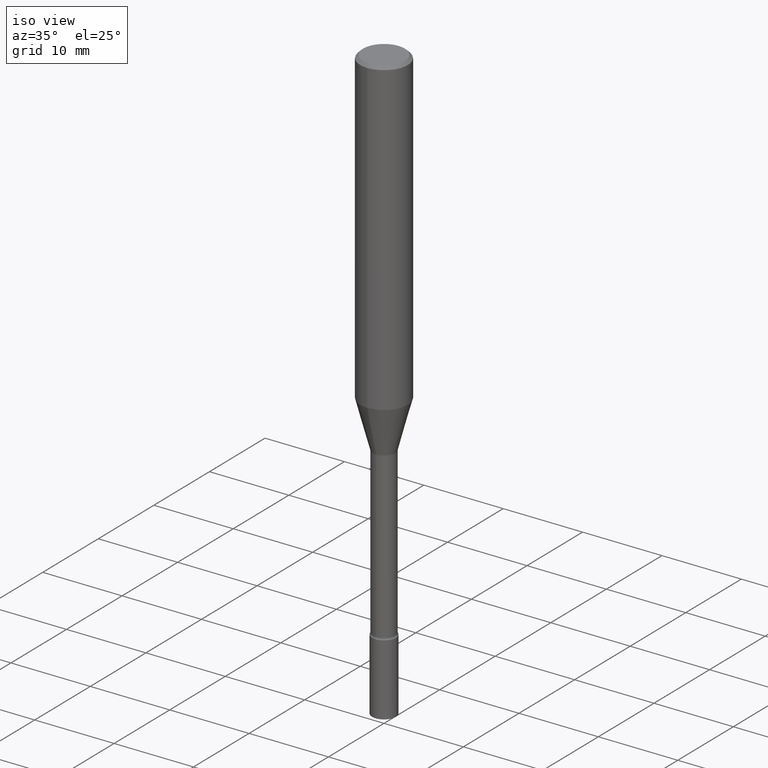
[diagram: clean part render]
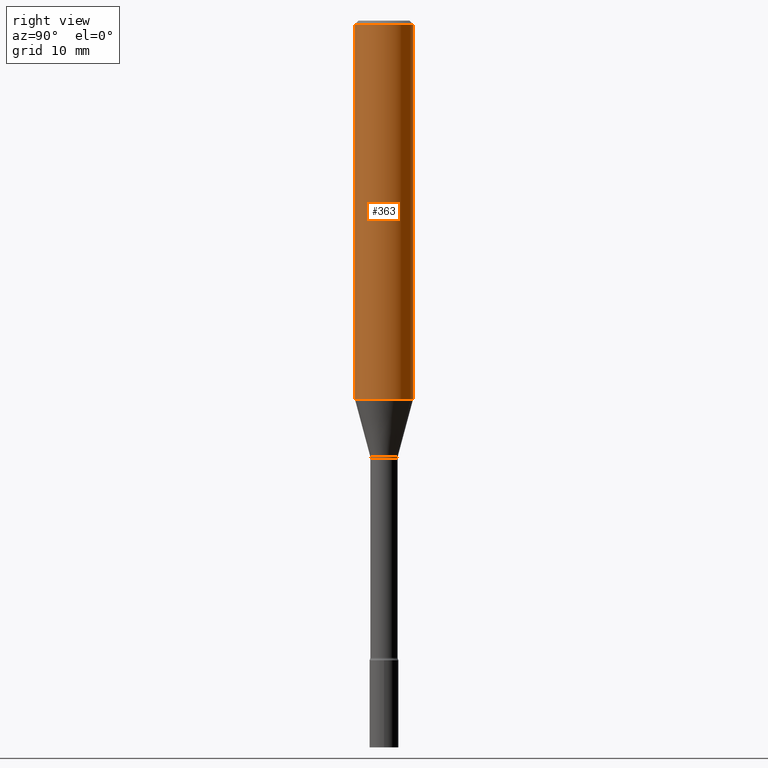
[diagram: tour spotlight — one face highlighted and labeled with its STEP entity id]
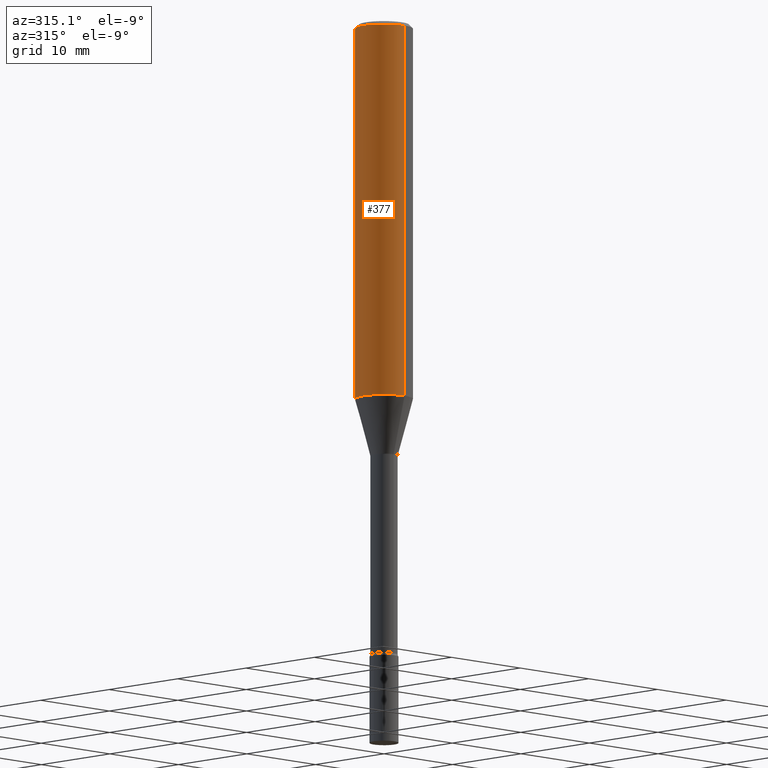
[diagram: tour spotlight — one face highlighted and labeled with its STEP entity id]
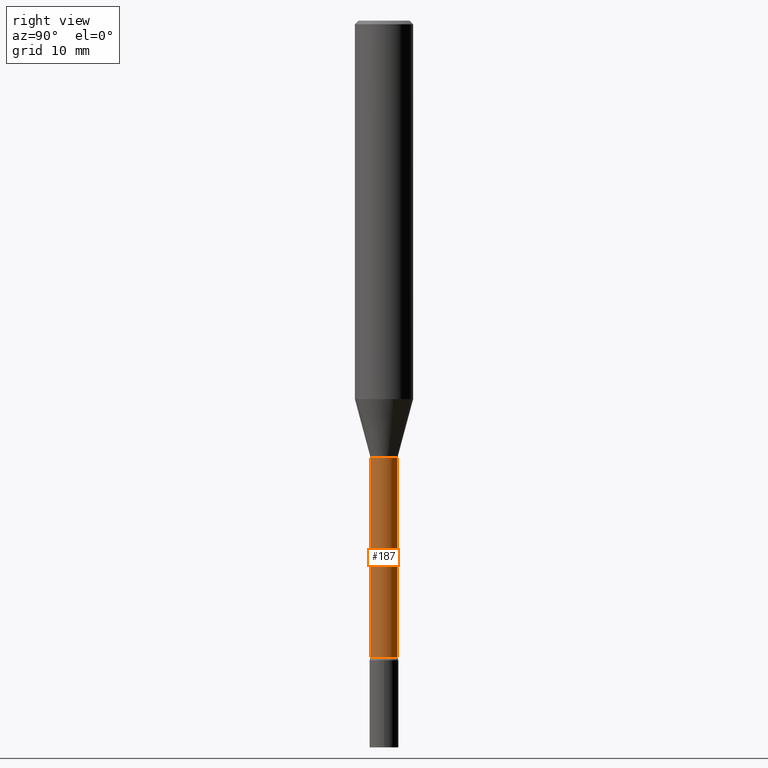
[diagram: tour spotlight — one face highlighted and labeled with its STEP entity id]
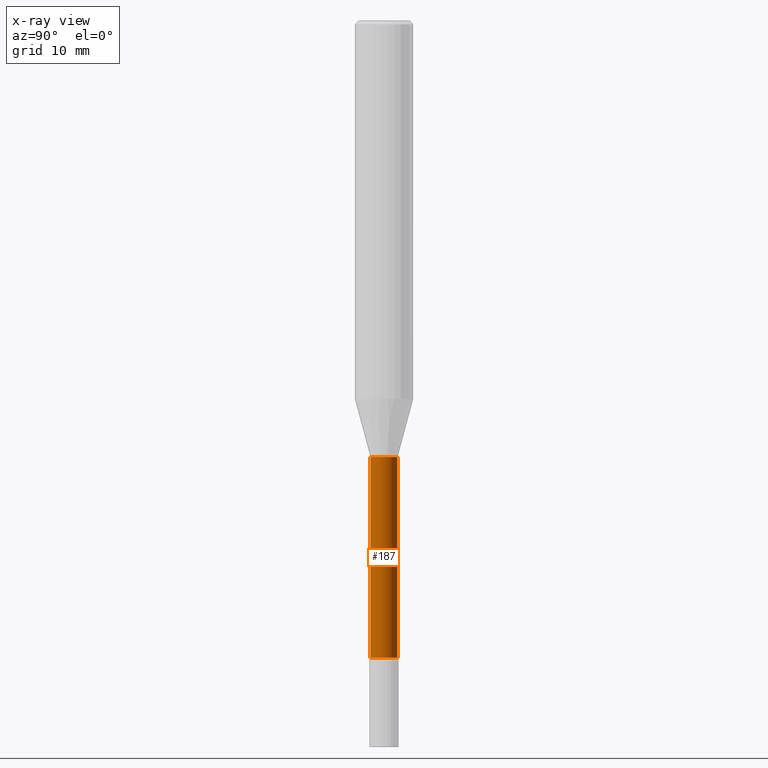
[diagram: x-ray of the same camera — body ghosted, this tour face saturated]
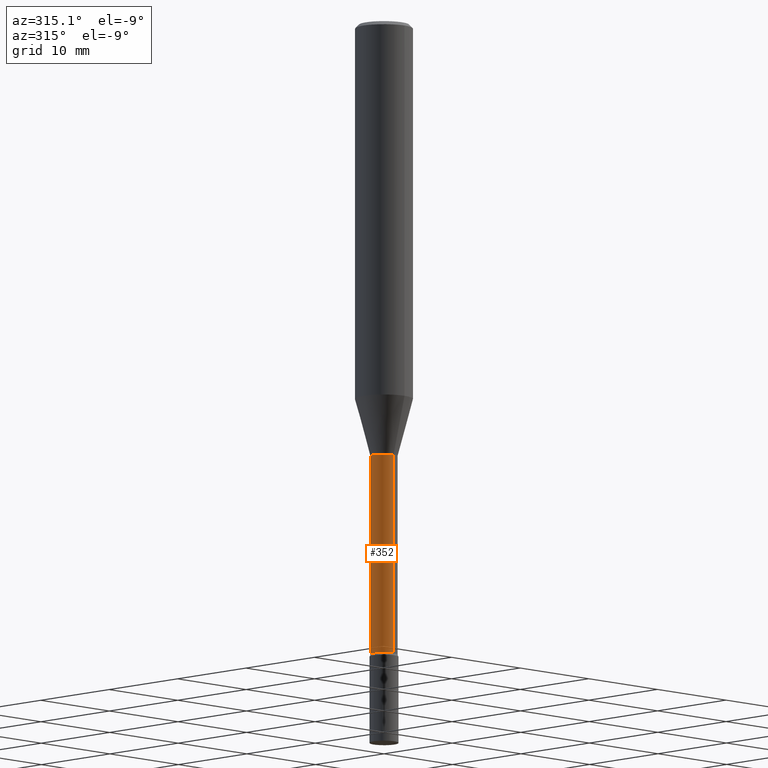
[diagram: tour spotlight — one face highlighted and labeled with its STEP entity id]
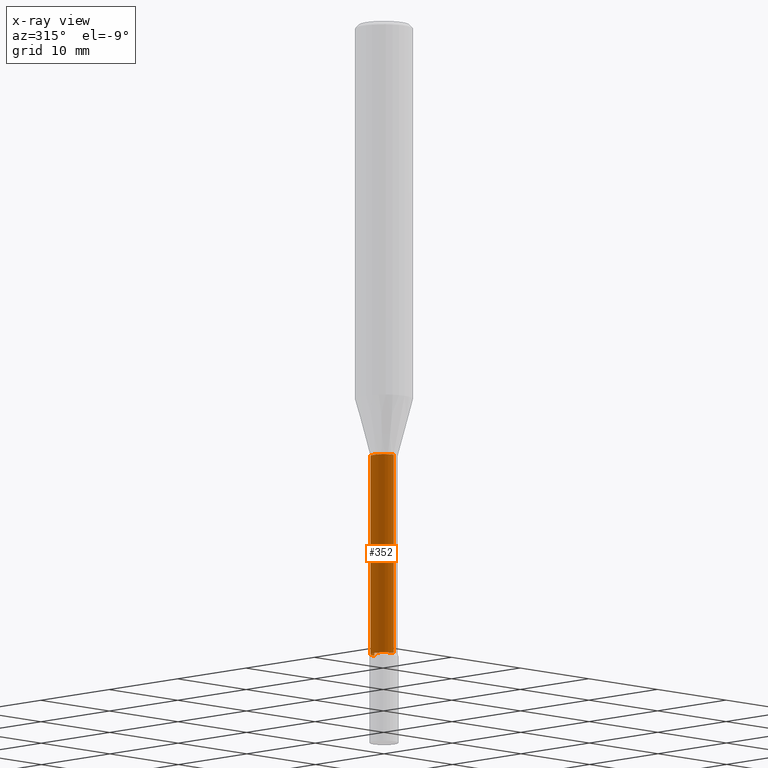
[diagram: x-ray of the same camera — body ghosted, this tour face saturated]
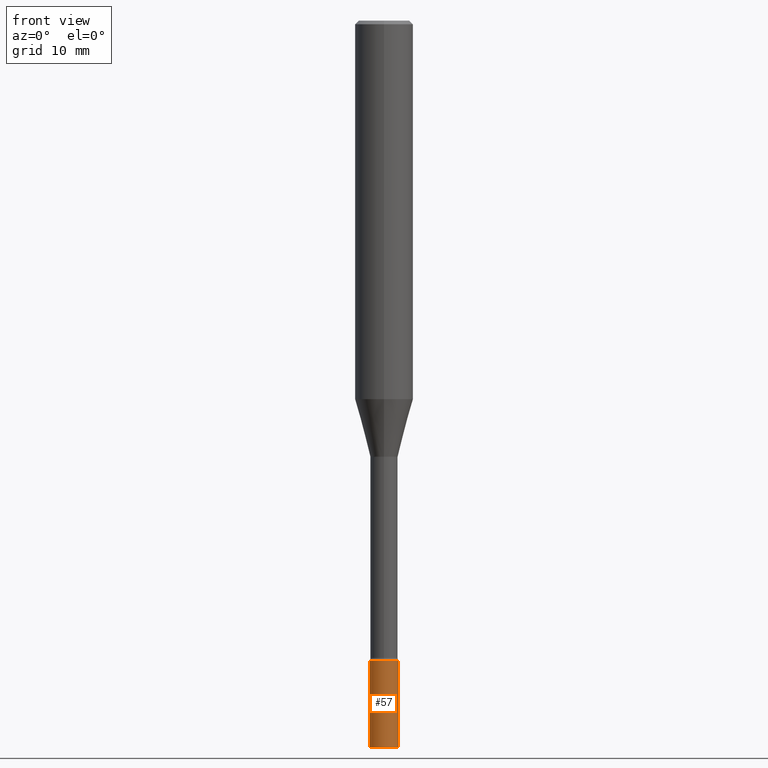
[diagram: tour spotlight — one face highlighted and labeled with its STEP entity id]
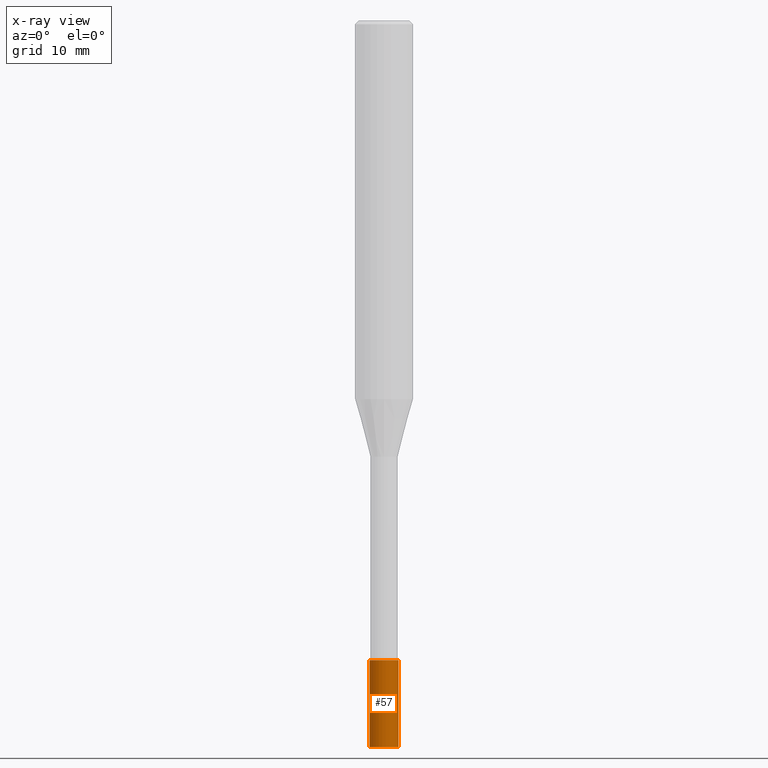
[diagram: x-ray of the same camera — body ghosted, this tour face saturated]
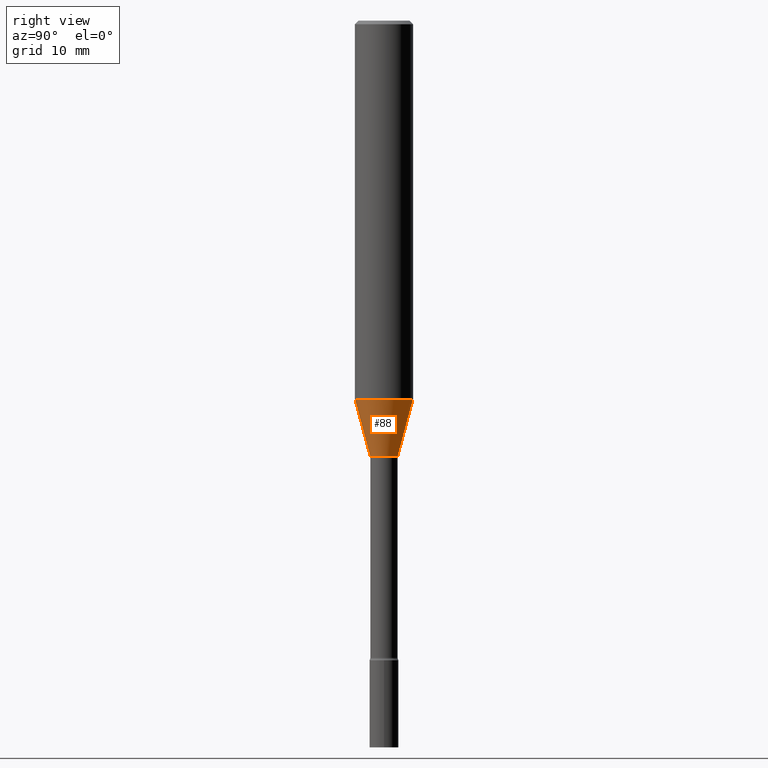
[diagram: tour spotlight — one face highlighted and labeled with its STEP entity id]
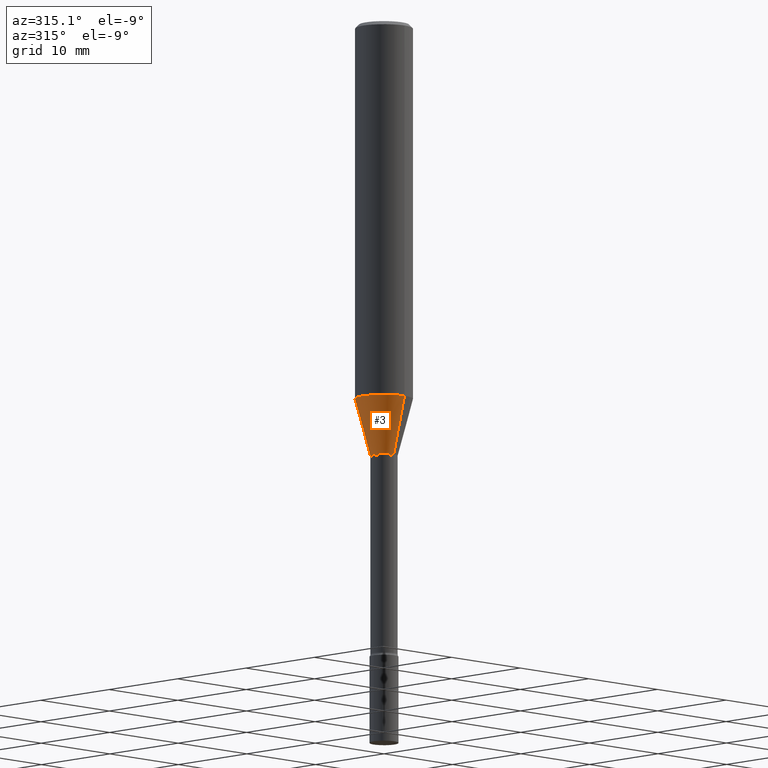
[diagram: tour spotlight — one face highlighted and labeled with its STEP entity id]
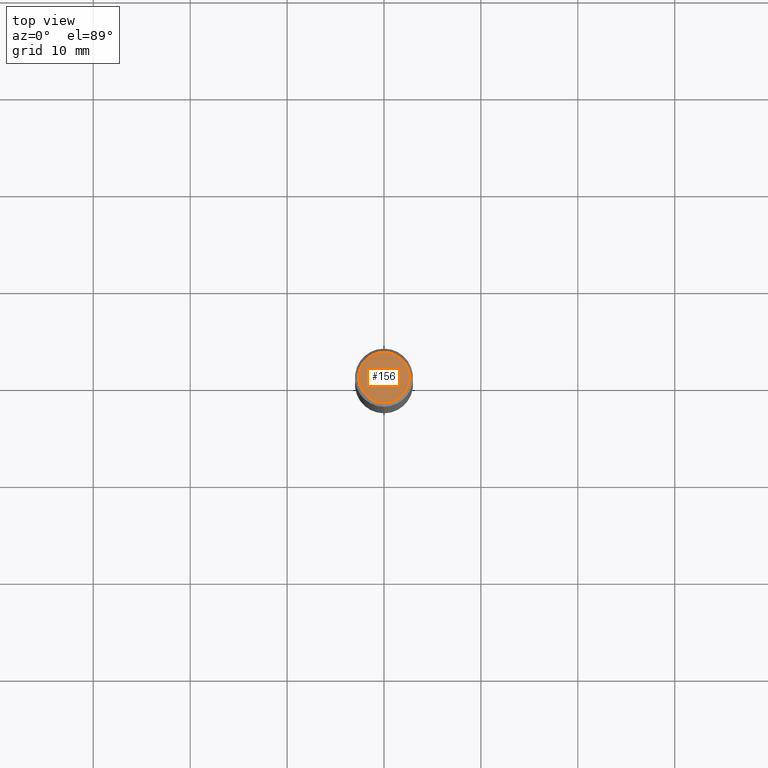
[diagram: tour spotlight — one face highlighted and labeled with its STEP entity id]
A machine part: a face-by-face anatomy tour. The part has 18 B-rep faces; the first image is the clean iso view, then the 8 largest visible faces are spotlighted one at a time (largest first), each with its STEP entity span.

Face 1 — right view, entity #363. In plain terms, the highlighted cylindrical surface (edge-blend (fillet) strip) has radius 2.9997 mm, axis along (-0, 0, 1).
Definition (entity closure, byte-faithful):
#25 = AXIS2_PLACEMENT_3D ( 'NONE', #418, #56, #453 ) ;
#26 = CARTESIAN_POINT ( 'NONE',  ( 3.761636145230313250E-29, -5.369689796606469410E-15, -1.538073619446188589 ) ) ;
#56 = DIRECTION ( 'NONE',  ( -2.445680166196959120E-29, 3.491178659276350979E-15, 1.000000000000000000 ) ) ;
#69 = AXIS2_PLACEMENT_3D ( 'NONE', #26, #509, #266 ) ;
#96 = CYLINDRICAL_SURFACE ( 'NONE', #25, 0.1180999999999999966 ) ;
#152 = CARTESIAN_POINT ( 'NONE',  ( 8.391509709327160624E-16, 0.1180999999999999411, -0.01500000000000042619 ) ) ;
#163 = CARTESIAN_POINT ( 'NONE',  ( -8.246878922347479668E-16, -0.1180999999999999966, 4.123081996605370469E-16 ) ) ;
#165 = AXIS2_PLACEMENT_3D ( 'NONE', #384, #334, #290 ) ;
#182 = CIRCLE ( 'NONE', #165, 0.1180999999999999966 ) ;
#197 = DIRECTION ( 'NONE',  ( -2.445680166196959400E-29, 3.491178659276351373E-15, 1.000000000000000000 ) ) ;
#201 = EDGE_CURVE ( 'NONE', #282, #203, #400, .T. ) ;
#203 = VERTEX_POINT ( 'NONE', #328 ) ;
#216 = ORIENTED_EDGE ( 'NONE', *, *, #201, .F. ) ;
#217 = LINE ( 'NONE', #349, #362 ) ;
#253 = ORIENTED_EDGE ( 'NONE', *, *, #483, .T. ) ;
#260 = EDGE_LOOP ( 'NONE', ( #368, #253, #355, #216 ) ) ;
#266 = DIRECTION ( 'NONE',  ( -6.982962677686265922E-15, -1.000000000000000000, 4.626330217890369336E-15 ) ) ;
#282 = VERTEX_POINT ( 'NONE', #465 ) ;
#288 = EDGE_CURVE ( 'NONE', #203, #458, #182, .T. ) ;
#290 = DIRECTION ( 'NONE',  ( -6.982962677686265922E-15, -1.000000000000000000, 3.487819265831411744E-15 ) ) ;
#328 = CARTESIAN_POINT ( 'NONE',  ( -8.246878922347475723E-16, -0.1181000000000000522, -0.01499999999999960393 ) ) ;
#334 = DIRECTION ( 'NONE',  ( -2.445680166196959120E-29, 3.491178659276350979E-15, 1.000000000000000000 ) ) ;
#349 = CARTESIAN_POINT ( 'NONE',  ( 8.391509709326781971E-16, 0.1180999999999999966, -4.123081996605370469E-16 ) ) ;
#355 = ORIENTED_EDGE ( 'NONE', *, *, #288, .F. ) ;
#362 = VECTOR ( 'NONE', #387, 39.37007874015748143 ) ;
#363 = ADVANCED_FACE ( 'NONE', ( #490 ), #96, .T. ) ;
#368 = ORIENTED_EDGE ( 'NONE', *, *, #451, .T. ) ;
#384 = CARTESIAN_POINT ( 'NONE',  ( 3.668520249295442112E-31, -5.236767988914531473E-17, -0.01500000000000001506 ) ) ;
#387 = DIRECTION ( 'NONE',  ( -2.445680166196959400E-29, 3.491178659276351373E-15, 1.000000000000000000 ) ) ;
#390 = CARTESIAN_POINT ( 'NONE',  ( 8.391509709327159638E-16, 0.1180999999999946537, -1.538073619446189255 ) ) ;
#400 = LINE ( 'NONE', #163, #404 ) ;
#404 = VECTOR ( 'NONE', #197, 39.37007874015748143 ) ;
#418 = CARTESIAN_POINT ( 'NONE',  ( 0.000000000000000000, 0.000000000000000000, 0.000000000000000000 ) ) ;
#420 = VERTEX_POINT ( 'NONE', #390 ) ;
#451 = EDGE_CURVE ( 'NONE', #282, #420, #518, .T. ) ;
#453 = DIRECTION ( 'NONE',  ( -6.982962677686265922E-15, -1.000000000000000000, 3.491178659276350979E-15 ) ) ;
#458 = VERTEX_POINT ( 'NONE', #152 ) ;
#465 = CARTESIAN_POINT ( 'NONE',  ( -8.246878922347102001E-16, -0.1181000000000053257, -1.538073619446188145 ) ) ;
#483 = EDGE_CURVE ( 'NONE', #420, #458, #217, .T. ) ;
#490 = FACE_OUTER_BOUND ( 'NONE', #260, .T. ) ;
#509 = DIRECTION ( 'NONE',  ( -2.445680166196959120E-29, 3.491178659276350979E-15, 1.000000000000000000 ) ) ;
#518 = CIRCLE ( 'NONE', #69, 0.1180999999999999966 ) ;

Face 2 — auxiliary view, entity #377. In plain terms, the highlighted cylindrical surface (edge-blend (fillet) strip) has radius 2.9997 mm, axis along (-0, 0, 1).
Definition (entity closure, byte-faithful):
#60 = AXIS2_PLACEMENT_3D ( 'NONE', #376, #500, #100 ) ;
#100 = DIRECTION ( 'NONE',  ( -6.982962677686265922E-15, -1.000000000000000000, 3.491178659276350979E-15 ) ) ;
#110 = EDGE_CURVE ( 'NONE', #420, #282, #148, .T. ) ;
#121 = DIRECTION ( 'NONE',  ( -2.445680166196959120E-29, 3.491178659276350979E-15, 1.000000000000000000 ) ) ;
#128 = ORIENTED_EDGE ( 'NONE', *, *, #201, .T. ) ;
#148 = CIRCLE ( 'NONE', #346, 0.1180999999999999966 ) ;
#152 = CARTESIAN_POINT ( 'NONE',  ( 8.391509709327160624E-16, 0.1180999999999999411, -0.01500000000000042619 ) ) ;
#163 = CARTESIAN_POINT ( 'NONE',  ( -8.246878922347479668E-16, -0.1180999999999999966, 4.123081996605370469E-16 ) ) ;
#197 = DIRECTION ( 'NONE',  ( -2.445680166196959400E-29, 3.491178659276351373E-15, 1.000000000000000000 ) ) ;
#201 = EDGE_CURVE ( 'NONE', #282, #203, #400, .T. ) ;
#203 = VERTEX_POINT ( 'NONE', #328 ) ;
#209 = FACE_OUTER_BOUND ( 'NONE', #489, .T. ) ;
#211 = CYLINDRICAL_SURFACE ( 'NONE', #60, 0.1180999999999999966 ) ;
#217 = LINE ( 'NONE', #349, #362 ) ;
#221 = ORIENTED_EDGE ( 'NONE', *, *, #508, .F. ) ;
#226 = DIRECTION ( 'NONE',  ( -2.445680166196959120E-29, 3.491178659276350979E-15, 1.000000000000000000 ) ) ;
#244 = AXIS2_PLACEMENT_3D ( 'NONE', #467, #226, #394 ) ;
#279 = DIRECTION ( 'NONE',  ( -6.982962677686265922E-15, -1.000000000000000000, 4.626330217890369336E-15 ) ) ;
#282 = VERTEX_POINT ( 'NONE', #465 ) ;
#328 = CARTESIAN_POINT ( 'NONE',  ( -8.246878922347475723E-16, -0.1181000000000000522, -0.01499999999999960393 ) ) ;
#332 = CARTESIAN_POINT ( 'NONE',  ( 3.761636145230313250E-29, -5.369689796606469410E-15, -1.538073619446188589 ) ) ;
#346 = AXIS2_PLACEMENT_3D ( 'NONE', #332, #121, #279 ) ;
#349 = CARTESIAN_POINT ( 'NONE',  ( 8.391509709326781971E-16, 0.1180999999999999966, -4.123081996605370469E-16 ) ) ;
#362 = VECTOR ( 'NONE', #387, 39.37007874015748143 ) ;
#376 = CARTESIAN_POINT ( 'NONE',  ( 0.000000000000000000, 0.000000000000000000, 0.000000000000000000 ) ) ;
#377 = ADVANCED_FACE ( 'NONE', ( #209 ), #211, .T. ) ;
#386 = ORIENTED_EDGE ( 'NONE', *, *, #483, .F. ) ;
#387 = DIRECTION ( 'NONE',  ( -2.445680166196959400E-29, 3.491178659276351373E-15, 1.000000000000000000 ) ) ;
#388 = CIRCLE ( 'NONE', #244, 0.1180999999999999966 ) ;
#390 = CARTESIAN_POINT ( 'NONE',  ( 8.391509709327159638E-16, 0.1180999999999946537, -1.538073619446189255 ) ) ;
#394 = DIRECTION ( 'NONE',  ( -6.982962677686265922E-15, -1.000000000000000000, 3.487819265831411744E-15 ) ) ;
#400 = LINE ( 'NONE', #163, #404 ) ;
#404 = VECTOR ( 'NONE', #197, 39.37007874015748143 ) ;
#420 = VERTEX_POINT ( 'NONE', #390 ) ;
#456 = ORIENTED_EDGE ( 'NONE', *, *, #110, .T. ) ;
#458 = VERTEX_POINT ( 'NONE', #152 ) ;
#465 = CARTESIAN_POINT ( 'NONE',  ( -8.246878922347102001E-16, -0.1181000000000053257, -1.538073619446188145 ) ) ;
#467 = CARTESIAN_POINT ( 'NONE',  ( 3.668520249295442112E-31, -5.236767988914531473E-17, -0.01500000000000001506 ) ) ;
#483 = EDGE_CURVE ( 'NONE', #420, #458, #217, .T. ) ;
#489 = EDGE_LOOP ( 'NONE', ( #386, #456, #128, #221 ) ) ;
#500 = DIRECTION ( 'NONE',  ( -2.445680166196959120E-29, 3.491178659276350979E-15, 1.000000000000000000 ) ) ;
#508 = EDGE_CURVE ( 'NONE', #458, #203, #388, .T. ) ;

Face 3 — right view, entity #187. An x-ray twin of the same camera follows (body ghosted, this face saturated) — the face is partly hidden behind the body. In plain terms, the highlighted cylindrical surface (edge-blend (fillet) strip) has radius 1.4097 mm, axis along (-0, 0, 1).
Definition (entity closure, byte-faithful):
#2 = FACE_OUTER_BOUND ( 'NONE', #502, .T. ) ;
#5 = DIRECTION ( 'NONE',  ( -6.982962677686265922E-15, -1.000000000000000000, 4.922248637232907190E-15 ) ) ;
#7 = DIRECTION ( 'NONE',  ( -6.982962677686265922E-15, -1.000000000000000000, 0.000000000000000000 ) ) ;
#9 = EDGE_CURVE ( 'NONE', #430, #375, #435, .T. ) ;
#27 = CARTESIAN_POINT ( 'NONE',  ( 4.069633519066611772E-16, 0.05549999999999111894, -2.588809927760847174 ) ) ;
#40 = CIRCLE ( 'NONE', #236, 0.05549999999999999378 ) ;
#42 = DIRECTION ( 'NONE',  ( -2.445680166196959120E-29, 3.491178659276350979E-15, 1.000000000000000000 ) ) ;
#46 = CARTESIAN_POINT ( 'NONE',  ( -3.875544286115255238E-16, -0.05550000000000920169, -2.588809927760847174 ) ) ;
#52 = DIRECTION ( 'NONE',  ( -2.445680166196959400E-29, 3.491178659276351373E-15, 1.000000000000000000 ) ) ;
#54 = CARTESIAN_POINT ( 'NONE',  ( 3.943512183469192595E-16, 0.05549999999999380429, -1.773674787463810798 ) ) ;
#74 = DIRECTION ( 'NONE',  ( -2.445680166196959400E-29, 3.491178659276351373E-15, 1.000000000000000000 ) ) ;
#77 = CARTESIAN_POINT ( 'NONE',  ( 3.943512183468561013E-16, 0.05550000000000008399, -1.937604155898377489E-16 ) ) ;
#90 = AXIS2_PLACEMENT_3D ( 'NONE', #167, #42, #482 ) ;
#111 = VERTEX_POINT ( 'NONE', #46 ) ;
#118 = DIRECTION ( 'NONE',  ( -2.445680166196959120E-29, 3.491178659276350979E-15, 1.000000000000000000 ) ) ;
#167 = CARTESIAN_POINT ( 'NONE',  ( 0.000000000000000000, 0.000000000000000000, 0.000000000000000000 ) ) ;
#172 = LINE ( 'NONE', #257, #395 ) ;
#180 = EDGE_CURVE ( 'NONE', #111, #430, #463, .T. ) ;
#185 = VECTOR ( 'NONE', #74, 39.37007874015748143 ) ;
#187 = ADVANCED_FACE ( 'NONE', ( #2 ), #234, .T. ) ;
#196 = EDGE_CURVE ( 'NONE', #447, #375, #40, .T. ) ;
#222 = EDGE_CURVE ( 'NONE', #111, #447, #172, .T. ) ;
#232 = CARTESIAN_POINT ( 'NONE',  ( 4.337841248983848354E-29, -6.192215566490173513E-15, -1.773674787463810576 ) ) ;
#234 = CYLINDRICAL_SURFACE ( 'NONE', #90, 0.05550000000000008399 ) ;
#236 = AXIS2_PLACEMENT_3D ( 'NONE', #232, #238, #5 ) ;
#238 = DIRECTION ( 'NONE',  ( -2.445680166196959120E-29, 3.491178659276350979E-15, 1.000000000000000000 ) ) ;
#257 = CARTESIAN_POINT ( 'NONE',  ( -3.875544286115883369E-16, -0.05550000000000008399, 1.937604155898377489E-16 ) ) ;
#264 = AXIS2_PLACEMENT_3D ( 'NONE', #367, #118, #7 ) ;
#289 = ORIENTED_EDGE ( 'NONE', *, *, #180, .T. ) ;
#291 = ORIENTED_EDGE ( 'NONE', *, *, #196, .F. ) ;
#353 = CARTESIAN_POINT ( 'NONE',  ( -3.875544286115443579E-16, -0.05550000000000618328, -1.773674787463810354 ) ) ;
#367 = CARTESIAN_POINT ( 'NONE',  ( 6.331401094378485803E-29, -9.037997972721422711E-15, -2.588809927760847174 ) ) ;
#375 = VERTEX_POINT ( 'NONE', #54 ) ;
#385 = ORIENTED_EDGE ( 'NONE', *, *, #9, .T. ) ;
#395 = VECTOR ( 'NONE', #52, 39.37007874015748143 ) ;
#430 = VERTEX_POINT ( 'NONE', #27 ) ;
#435 = LINE ( 'NONE', #77, #185 ) ;
#447 = VERTEX_POINT ( 'NONE', #353 ) ;
#463 = CIRCLE ( 'NONE', #264, 0.05550000000000016032 ) ;
#466 = ORIENTED_EDGE ( 'NONE', *, *, #222, .F. ) ;
#482 = DIRECTION ( 'NONE',  ( -6.982962677686265922E-15, -1.000000000000000000, 3.491178659276350584E-15 ) ) ;
#502 = EDGE_LOOP ( 'NONE', ( #289, #385, #291, #466 ) ) ;

Face 4 — auxiliary view, entity #352. An x-ray twin of the same camera follows (body ghosted, this face saturated) — the face is partly hidden behind the body. In plain terms, the highlighted cylindrical surface (edge-blend (fillet) strip) has radius 1.4097 mm, axis along (-0, 0, 1).
Definition (entity closure, byte-faithful):
#9 = EDGE_CURVE ( 'NONE', #430, #375, #435, .T. ) ;
#12 = DIRECTION ( 'NONE',  ( -6.982962677686265922E-15, -1.000000000000000000, 0.000000000000000000 ) ) ;
#14 = DIRECTION ( 'NONE',  ( -2.445680166196959120E-29, 3.491178659276350979E-15, 1.000000000000000000 ) ) ;
#27 = CARTESIAN_POINT ( 'NONE',  ( 4.069633519066611772E-16, 0.05549999999999111894, -2.588809927760847174 ) ) ;
#46 = CARTESIAN_POINT ( 'NONE',  ( -3.875544286115255238E-16, -0.05550000000000920169, -2.588809927760847174 ) ) ;
#48 = AXIS2_PLACEMENT_3D ( 'NONE', #169, #335, #294 ) ;
#52 = DIRECTION ( 'NONE',  ( -2.445680166196959400E-29, 3.491178659276351373E-15, 1.000000000000000000 ) ) ;
#54 = CARTESIAN_POINT ( 'NONE',  ( 3.943512183469192595E-16, 0.05549999999999380429, -1.773674787463810798 ) ) ;
#74 = DIRECTION ( 'NONE',  ( -2.445680166196959400E-29, 3.491178659276351373E-15, 1.000000000000000000 ) ) ;
#77 = CARTESIAN_POINT ( 'NONE',  ( 3.943512183468561013E-16, 0.05550000000000008399, -1.937604155898377489E-16 ) ) ;
#101 = AXIS2_PLACEMENT_3D ( 'NONE', #177, #14, #12 ) ;
#111 = VERTEX_POINT ( 'NONE', #46 ) ;
#114 = ORIENTED_EDGE ( 'NONE', *, *, #222, .T. ) ;
#132 = CIRCLE ( 'NONE', #210, 0.05549999999999999378 ) ;
#138 = FACE_OUTER_BOUND ( 'NONE', #422, .T. ) ;
#145 = DIRECTION ( 'NONE',  ( -6.982962677686265922E-15, -1.000000000000000000, 4.922248637232907190E-15 ) ) ;
#169 = CARTESIAN_POINT ( 'NONE',  ( 0.000000000000000000, 0.000000000000000000, 0.000000000000000000 ) ) ;
#172 = LINE ( 'NONE', #257, #395 ) ;
#177 = CARTESIAN_POINT ( 'NONE',  ( 6.331401094378485803E-29, -9.037997972721422711E-15, -2.588809927760847174 ) ) ;
#185 = VECTOR ( 'NONE', #74, 39.37007874015748143 ) ;
#210 = AXIS2_PLACEMENT_3D ( 'NONE', #308, #350, #145 ) ;
#222 = EDGE_CURVE ( 'NONE', #111, #447, #172, .T. ) ;
#257 = CARTESIAN_POINT ( 'NONE',  ( -3.875544286115883369E-16, -0.05550000000000008399, 1.937604155898377489E-16 ) ) ;
#294 = DIRECTION ( 'NONE',  ( -6.982962677686265922E-15, -1.000000000000000000, 3.491178659276350584E-15 ) ) ;
#295 = ORIENTED_EDGE ( 'NONE', *, *, #9, .F. ) ;
#308 = CARTESIAN_POINT ( 'NONE',  ( 4.337841248983848354E-29, -6.192215566490173513E-15, -1.773674787463810576 ) ) ;
#311 = EDGE_CURVE ( 'NONE', #430, #111, #503, .T. ) ;
#335 = DIRECTION ( 'NONE',  ( -2.445680166196959120E-29, 3.491178659276350979E-15, 1.000000000000000000 ) ) ;
#340 = CYLINDRICAL_SURFACE ( 'NONE', #48, 0.05550000000000008399 ) ;
#350 = DIRECTION ( 'NONE',  ( -2.445680166196959120E-29, 3.491178659276350979E-15, 1.000000000000000000 ) ) ;
#352 = ADVANCED_FACE ( 'NONE', ( #138 ), #340, .T. ) ;
#353 = CARTESIAN_POINT ( 'NONE',  ( -3.875544286115443579E-16, -0.05550000000000618328, -1.773674787463810354 ) ) ;
#375 = VERTEX_POINT ( 'NONE', #54 ) ;
#395 = VECTOR ( 'NONE', #52, 39.37007874015748143 ) ;
#422 = EDGE_LOOP ( 'NONE', ( #295, #487, #114, #449 ) ) ;
#430 = VERTEX_POINT ( 'NONE', #27 ) ;
#434 = EDGE_CURVE ( 'NONE', #375, #447, #132, .T. ) ;
#435 = LINE ( 'NONE', #77, #185 ) ;
#447 = VERTEX_POINT ( 'NONE', #353 ) ;
#449 = ORIENTED_EDGE ( 'NONE', *, *, #434, .F. ) ;
#487 = ORIENTED_EDGE ( 'NONE', *, *, #311, .T. ) ;
#503 = CIRCLE ( 'NONE', #101, 0.05550000000000016032 ) ;

Face 5 — front view, entity #57. An x-ray twin of the same camera follows (body ghosted, this face saturated) — the face is partly hidden behind the body. In plain terms, the highlighted cylindrical surface (edge-blend (fillet) strip) has radius 1.4999 mm, axis along (-0, 0, 1).
Definition (entity closure, byte-faithful):
#4 = VECTOR ( 'NONE', #37, 39.37007874015748143 ) ;
#18 = ORIENTED_EDGE ( 'NONE', *, *, #491, .T. ) ;
#20 = VERTEX_POINT ( 'NONE', #438 ) ;
#24 = DIRECTION ( 'NONE',  ( -2.445468806185136597E-29, 3.491481338843145583E-15, 1.000000000000000000 ) ) ;
#31 = EDGE_CURVE ( 'NONE', #20, #212, #403, .T. ) ;
#37 = DIRECTION ( 'NONE',  ( -2.445468806185136877E-29, 3.491481338843145188E-15, 1.000000000000000000 ) ) ;
#57 = ADVANCED_FACE ( 'NONE', ( #516 ), #440, .T. ) ;
#58 = ORIENTED_EDGE ( 'NONE', *, *, #214, .T. ) ;
#94 = DIRECTION ( 'NONE',  ( -2.445468806185136597E-29, 3.491481338843145583E-15, 1.000000000000000000 ) ) ;
#103 = CARTESIAN_POINT ( 'NONE',  ( 0.05904999999999999832, -4.123439461173740327E-16, 2.879382386107500220E-30 ) ) ;
#105 = ORIENTED_EDGE ( 'NONE', *, *, #245, .F. ) ;
#115 = CIRCLE ( 'NONE', #292, 0.05904999999999999832 ) ;
#129 = CARTESIAN_POINT ( 'NONE',  ( 0.05904999999999999832, -9.484958205101287110E-15, -2.598499999999999588 ) ) ;
#130 = DIRECTION ( 'NONE',  ( -2.445468806185136877E-29, 3.491481338843145188E-15, 1.000000000000000000 ) ) ;
#144 = AXIS2_PLACEMENT_3D ( 'NONE', #317, #94, #329 ) ;
#151 = VERTEX_POINT ( 'NONE', #520 ) ;
#181 = DIRECTION ( 'NONE',  ( 1.000000000000000000, -6.982962677686273021E-15, 0.000000000000000000 ) ) ;
#188 = CARTESIAN_POINT ( 'NONE',  ( 7.220980290903470182E-29, -1.030964609733603853E-14, -2.952799999999999869 ) ) ;
#198 = CARTESIAN_POINT ( 'NONE',  ( -0.05904999999999999832, 4.195754854663391478E-16, -2.904631170795521892E-30 ) ) ;
#207 = VERTEX_POINT ( 'NONE', #129 ) ;
#208 = DIRECTION ( 'NONE',  ( 1.000000000000000000, -6.982962677686273021E-15, 0.000000000000000000 ) ) ;
#212 = VERTEX_POINT ( 'NONE', #446 ) ;
#214 = EDGE_CURVE ( 'NONE', #151, #207, #372, .T. ) ;
#215 = EDGE_LOOP ( 'NONE', ( #300, #18, #58, #105 ) ) ;
#245 = EDGE_CURVE ( 'NONE', #212, #207, #115, .T. ) ;
#292 = AXIS2_PLACEMENT_3D ( 'NONE', #381, #410, #208 ) ;
#300 = ORIENTED_EDGE ( 'NONE', *, *, #31, .F. ) ;
#317 = CARTESIAN_POINT ( 'NONE',  ( 0.000000000000000000, 0.000000000000000000, 0.000000000000000000 ) ) ;
#329 = DIRECTION ( 'NONE',  ( 1.000000000000000000, -6.982962677686266711E-15, 4.876176775795936353E-29 ) ) ;
#372 = LINE ( 'NONE', #103, #477 ) ;
#381 = CARTESIAN_POINT ( 'NONE',  ( 6.354550692872077420E-29, -9.072614258983912979E-15, -2.598499999999999588 ) ) ;
#403 = LINE ( 'NONE', #198, #4 ) ;
#410 = DIRECTION ( 'NONE',  ( -2.445468806185136597E-29, 3.491481338843145583E-15, 1.000000000000000000 ) ) ;
#419 = CIRCLE ( 'NONE', #485, 0.05904999999999999832 ) ;
#438 = CARTESIAN_POINT ( 'NONE',  ( -0.05904999999999999832, -9.271554692693635471E-15, -2.952799999999999869 ) ) ;
#440 = CYLINDRICAL_SURFACE ( 'NONE', #144, 0.05904999999999999832 ) ;
#446 = CARTESIAN_POINT ( 'NONE',  ( -0.05904999999999999832, -9.271554692693635471E-15, -2.598499999999999588 ) ) ;
#477 = VECTOR ( 'NONE', #130, 39.37007874015748143 ) ;
#485 = AXIS2_PLACEMENT_3D ( 'NONE', #188, #24, #181 ) ;
#491 = EDGE_CURVE ( 'NONE', #20, #151, #419, .T. ) ;
#516 = FACE_OUTER_BOUND ( 'NONE', #215, .T. ) ;
#520 = CARTESIAN_POINT ( 'NONE',  ( 0.05904999999999999832, -1.072199004345341266E-14, -2.952799999999999869 ) ) ;

Face 6 — right view, entity #88. In plain terms, the highlighted conical surface has half-angle 15 deg.
Definition (entity closure, byte-faithful):
#11 = EDGE_CURVE ( 'NONE', #38, #282, #230, .T. ) ;
#17 = ORIENTED_EDGE ( 'NONE', *, *, #451, .F. ) ;
#26 = CARTESIAN_POINT ( 'NONE',  ( 3.761636145230313250E-29, -5.369689796606469410E-15, -1.538073619446188589 ) ) ;
#38 = VERTEX_POINT ( 'NONE', #321 ) ;
#39 = FACE_OUTER_BOUND ( 'NONE', #428, .T. ) ;
#44 = CARTESIAN_POINT ( 'NONE',  ( 4.328346419905229650E-29, -6.178661813587029196E-15, -1.769792501787272654 ) ) ;
#65 = CARTESIAN_POINT ( 'NONE',  ( 3.979828918379984617E-16, 0.05601111260565780348, -1.769792501787272876 ) ) ;
#69 = AXIS2_PLACEMENT_3D ( 'NONE', #26, #509, #266 ) ;
#84 = DIRECTION ( 'NONE',  ( -6.982962677686266711E-15, -1.000000000000000000, 4.877332133888038554E-15 ) ) ;
#86 = DIRECTION ( 'NONE',  ( -2.445680166196959120E-29, 3.491178659276350979E-15, 1.000000000000000000 ) ) ;
#88 = ADVANCED_FACE ( 'NONE', ( #39 ), #250, .T. ) ;
#108 = AXIS2_PLACEMENT_3D ( 'NONE', #486, #124, #84 ) ;
#124 = DIRECTION ( 'NONE',  ( -2.445680166196959120E-29, 3.491178659276350979E-15, 1.000000000000000000 ) ) ;
#136 = ORIENTED_EDGE ( 'NONE', *, *, #192, .T. ) ;
#186 = DIRECTION ( 'NONE',  ( 1.839019923739600315E-15, 0.2588190451025249583, 0.9659258262890670910 ) ) ;
#192 = EDGE_CURVE ( 'NONE', #38, #408, #462, .T. ) ;
#230 = LINE ( 'NONE', #517, #268 ) ;
#250 = CONICAL_SURFACE ( 'NONE', #354, 0.05601111260566397909, 0.2617993877991502960 ) ;
#266 = DIRECTION ( 'NONE',  ( -6.982962677686265922E-15, -1.000000000000000000, 4.626330217890369336E-15 ) ) ;
#268 = VECTOR ( 'NONE', #431, 39.37007874015748143 ) ;
#274 = ORIENTED_EDGE ( 'NONE', *, *, #11, .F. ) ;
#282 = VERTEX_POINT ( 'NONE', #465 ) ;
#307 = LINE ( 'NONE', #65, #443 ) ;
#321 = CARTESIAN_POINT ( 'NONE',  ( -3.911235088609910457E-16, -0.05601111260567016165, -1.769792501787272432 ) ) ;
#354 = AXIS2_PLACEMENT_3D ( 'NONE', #44, #86, #484 ) ;
#382 = ORIENTED_EDGE ( 'NONE', *, *, #398, .T. ) ;
#390 = CARTESIAN_POINT ( 'NONE',  ( 8.391509709327159638E-16, 0.1180999999999946537, -1.538073619446189255 ) ) ;
#398 = EDGE_CURVE ( 'NONE', #408, #420, #307, .T. ) ;
#408 = VERTEX_POINT ( 'NONE', #474 ) ;
#420 = VERTEX_POINT ( 'NONE', #390 ) ;
#428 = EDGE_LOOP ( 'NONE', ( #136, #382, #17, #274 ) ) ;
#431 = DIRECTION ( 'NONE',  ( -1.807323732225330139E-15, -0.2588190451025181860, 0.9659258262890689783 ) ) ;
#443 = VECTOR ( 'NONE', #186, 39.37007874015748143 ) ;
#451 = EDGE_CURVE ( 'NONE', #282, #420, #518, .T. ) ;
#462 = CIRCLE ( 'NONE', #108, 0.05601111260566397909 ) ;
#465 = CARTESIAN_POINT ( 'NONE',  ( -8.246878922347102001E-16, -0.1181000000000053257, -1.538073619446188145 ) ) ;
#474 = CARTESIAN_POINT ( 'NONE',  ( 6.185669313853571635E-16, 0.05601111260565780348, -1.769792501787272876 ) ) ;
#484 = DIRECTION ( 'NONE',  ( -6.982962677686266711E-15, -1.000000000000000000, 4.877332133888038554E-15 ) ) ;
#486 = CARTESIAN_POINT ( 'NONE',  ( 4.328346419905229650E-29, -6.178661813587029196E-15, -1.769792501787272654 ) ) ;
#509 = DIRECTION ( 'NONE',  ( -2.445680166196959120E-29, 3.491178659276350979E-15, 1.000000000000000000 ) ) ;
#517 = CARTESIAN_POINT ( 'NONE',  ( -3.911235088609910457E-16, -0.05601111260567016165, -1.769792501787272432 ) ) ;
#518 = CIRCLE ( 'NONE', #69, 0.1180999999999999966 ) ;

Face 7 — auxiliary view, entity #3. In plain terms, the highlighted conical surface has half-angle 15 deg.
Definition (entity closure, byte-faithful):
#3 = ADVANCED_FACE ( 'NONE', ( #116 ), #242, .T. ) ;
#11 = EDGE_CURVE ( 'NONE', #38, #282, #230, .T. ) ;
#38 = VERTEX_POINT ( 'NONE', #321 ) ;
#59 = ORIENTED_EDGE ( 'NONE', *, *, #110, .F. ) ;
#65 = CARTESIAN_POINT ( 'NONE',  ( 3.979828918379984617E-16, 0.05601111260565780348, -1.769792501787272876 ) ) ;
#97 = ORIENTED_EDGE ( 'NONE', *, *, #409, .T. ) ;
#110 = EDGE_CURVE ( 'NONE', #420, #282, #148, .T. ) ;
#116 = FACE_OUTER_BOUND ( 'NONE', #396, .T. ) ;
#121 = DIRECTION ( 'NONE',  ( -2.445680166196959120E-29, 3.491178659276350979E-15, 1.000000000000000000 ) ) ;
#123 = AXIS2_PLACEMENT_3D ( 'NONE', #193, #319, #275 ) ;
#148 = CIRCLE ( 'NONE', #346, 0.1180999999999999966 ) ;
#186 = DIRECTION ( 'NONE',  ( 1.839019923739600315E-15, 0.2588190451025249583, 0.9659258262890670910 ) ) ;
#191 = CARTESIAN_POINT ( 'NONE',  ( 4.328346419905229650E-29, -6.178661813587029196E-15, -1.769792501787272654 ) ) ;
#193 = CARTESIAN_POINT ( 'NONE',  ( 4.328346419905229650E-29, -6.178661813587029196E-15, -1.769792501787272654 ) ) ;
#230 = LINE ( 'NONE', #517, #268 ) ;
#242 = CONICAL_SURFACE ( 'NONE', #123, 0.05601111260566397909, 0.2617993877991502960 ) ;
#268 = VECTOR ( 'NONE', #431, 39.37007874015748143 ) ;
#269 = ORIENTED_EDGE ( 'NONE', *, *, #398, .F. ) ;
#275 = DIRECTION ( 'NONE',  ( -6.982962677686266711E-15, -1.000000000000000000, 4.877332133888038554E-15 ) ) ;
#279 = DIRECTION ( 'NONE',  ( -6.982962677686265922E-15, -1.000000000000000000, 4.626330217890369336E-15 ) ) ;
#282 = VERTEX_POINT ( 'NONE', #465 ) ;
#304 = AXIS2_PLACEMENT_3D ( 'NONE', #191, #511, #427 ) ;
#307 = LINE ( 'NONE', #65, #443 ) ;
#319 = DIRECTION ( 'NONE',  ( -2.445680166196959120E-29, 3.491178659276350979E-15, 1.000000000000000000 ) ) ;
#321 = CARTESIAN_POINT ( 'NONE',  ( -3.911235088609910457E-16, -0.05601111260567016165, -1.769792501787272432 ) ) ;
#332 = CARTESIAN_POINT ( 'NONE',  ( 3.761636145230313250E-29, -5.369689796606469410E-15, -1.538073619446188589 ) ) ;
#346 = AXIS2_PLACEMENT_3D ( 'NONE', #332, #121, #279 ) ;
#351 = CIRCLE ( 'NONE', #304, 0.05601111260566397909 ) ;
#390 = CARTESIAN_POINT ( 'NONE',  ( 8.391509709327159638E-16, 0.1180999999999946537, -1.538073619446189255 ) ) ;
#396 = EDGE_LOOP ( 'NONE', ( #269, #97, #460, #59 ) ) ;
#398 = EDGE_CURVE ( 'NONE', #408, #420, #307, .T. ) ;
#408 = VERTEX_POINT ( 'NONE', #474 ) ;
#409 = EDGE_CURVE ( 'NONE', #408, #38, #351, .T. ) ;
#420 = VERTEX_POINT ( 'NONE', #390 ) ;
#427 = DIRECTION ( 'NONE',  ( -6.982962677686266711E-15, -1.000000000000000000, 4.877332133888038554E-15 ) ) ;
#431 = DIRECTION ( 'NONE',  ( -1.807323732225330139E-15, -0.2588190451025181860, 0.9659258262890689783 ) ) ;
#443 = VECTOR ( 'NONE', #186, 39.37007874015748143 ) ;
#460 = ORIENTED_EDGE ( 'NONE', *, *, #11, .T. ) ;
#465 = CARTESIAN_POINT ( 'NONE',  ( -8.246878922347102001E-16, -0.1181000000000053257, -1.538073619446188145 ) ) ;
#474 = CARTESIAN_POINT ( 'NONE',  ( 6.185669313853571635E-16, 0.05601111260565780348, -1.769792501787272876 ) ) ;
#511 = DIRECTION ( 'NONE',  ( -2.445680166196959120E-29, 3.491178659276350979E-15, 1.000000000000000000 ) ) ;
#517 = CARTESIAN_POINT ( 'NONE',  ( -3.911235088609910457E-16, -0.05601111260567016165, -1.769792501787272432 ) ) ;

Face 8 — top view, entity #156. In plain terms, the highlighted planar face has unit normal (0, -0, -1).
Definition (entity closure, byte-faithful):
#55 = ORIENTED_EDGE ( 'NONE', *, *, #454, .T. ) ;
#62 = DIRECTION ( 'NONE',  ( -2.445680166196959120E-29, 3.491178659276350979E-15, 1.000000000000000000 ) ) ;
#64 = VERTEX_POINT ( 'NONE', #413 ) ;
#79 = PLANE ( 'NONE',  #310 ) ;
#107 = DIRECTION ( 'NONE',  ( -2.445680166196959120E-29, 3.491178659276350979E-15, 1.000000000000000000 ) ) ;
#141 = CIRCLE ( 'NONE', #432, 0.1031000000000000111 ) ;
#156 = ADVANCED_FACE ( 'NONE', ( #320 ), #79, .F. ) ;
#173 = ORIENTED_EDGE ( 'NONE', *, *, #298, .T. ) ;
#178 = VERTEX_POINT ( 'NONE', #324 ) ;
#202 = DIRECTION ( 'NONE',  ( 6.982962677686265922E-15, 1.000000000000000000, -3.491178659276351373E-15 ) ) ;
#225 = EDGE_LOOP ( 'NONE', ( #55, #173 ) ) ;
#246 = AXIS2_PLACEMENT_3D ( 'NONE', #416, #62, #488 ) ;
#298 = EDGE_CURVE ( 'NONE', #64, #178, #318, .T. ) ;
#310 = AXIS2_PLACEMENT_3D ( 'NONE', #437, #365, #202 ) ;
#318 = CIRCLE ( 'NONE', #246, 0.1031000000000000111 ) ;
#320 = FACE_OUTER_BOUND ( 'NONE', #225, .T. ) ;
#324 = CARTESIAN_POINT ( 'NONE',  ( 7.723156721521011834E-16, 0.1031000000000000111, -3.744225582646670452E-16 ) ) ;
#365 = DIRECTION ( 'NONE',  ( 2.445680166196958559E-29, -3.491178659276351373E-15, -1.000000000000000000 ) ) ;
#413 = CARTESIAN_POINT ( 'NONE',  ( -7.587710785535310407E-16, -0.1031000000000000111, 3.454584812781165548E-16 ) ) ;
#416 = CARTESIAN_POINT ( 'NONE',  ( 3.541843430910425470E-46, -5.055938373054130789E-32, -1.448203849327528216E-17 ) ) ;
#432 = AXIS2_PLACEMENT_3D ( 'NONE', #469, #107, #512 ) ;
#437 = CARTESIAN_POINT ( 'NONE',  ( 7.199434520694541042E-16, 0.1031000000000000111, -3.671815390180293979E-16 ) ) ;
#454 = EDGE_CURVE ( 'NONE', #178, #64, #141, .T. ) ;
#469 = CARTESIAN_POINT ( 'NONE',  ( 3.541843430910425470E-46, -5.055938373054130789E-32, -1.448203849327528216E-17 ) ) ;
#488 = DIRECTION ( 'NONE',  ( -6.982962677686265922E-15, -1.000000000000000000, 3.491178659276350584E-15 ) ) ;
#512 = DIRECTION ( 'NONE',  ( -6.982962677686265922E-15, -1.000000000000000000, 3.491178659276350584E-15 ) ) ;